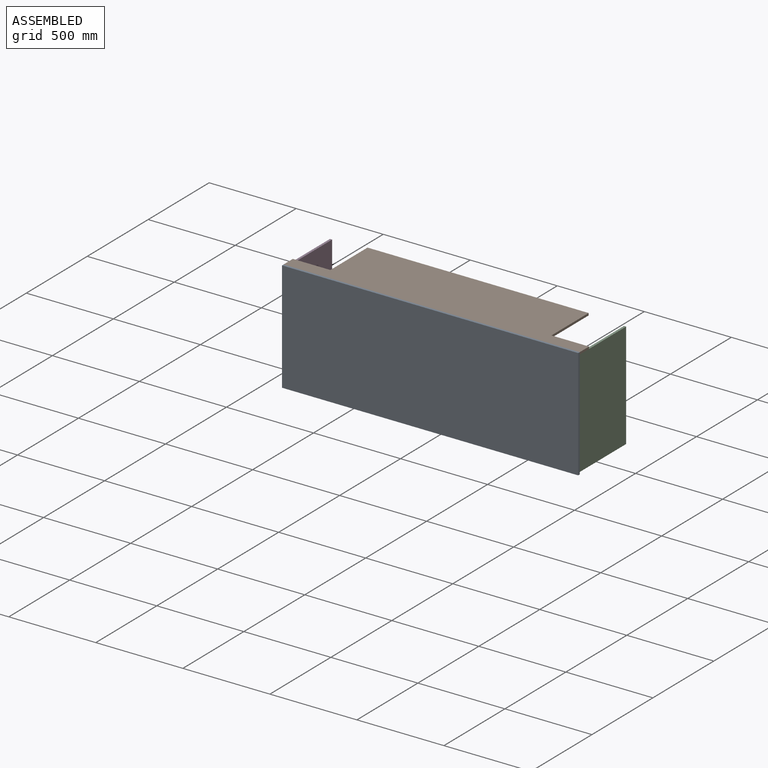
[diagram: assembled view]
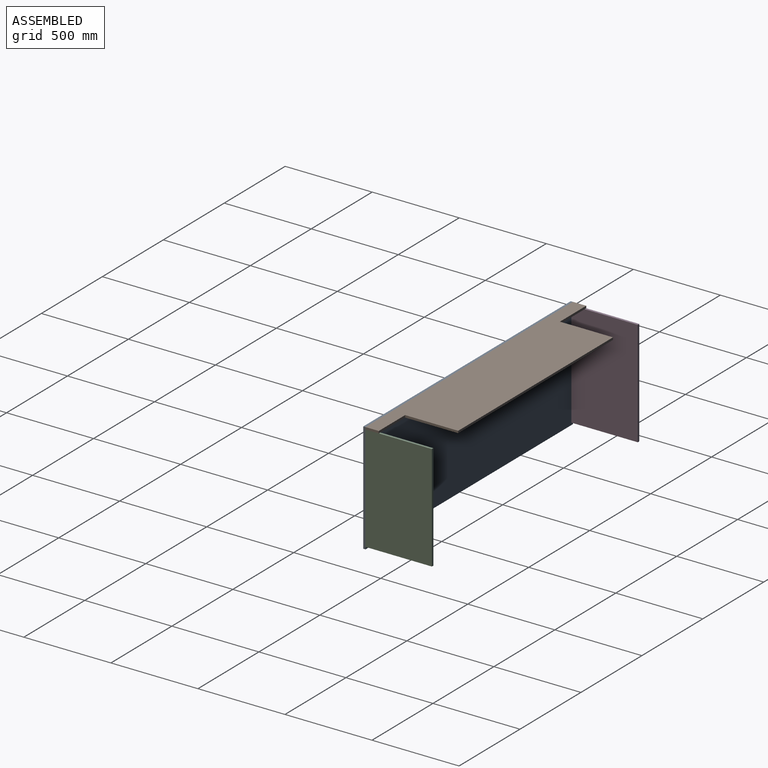
[diagram: assembled view, second angle]
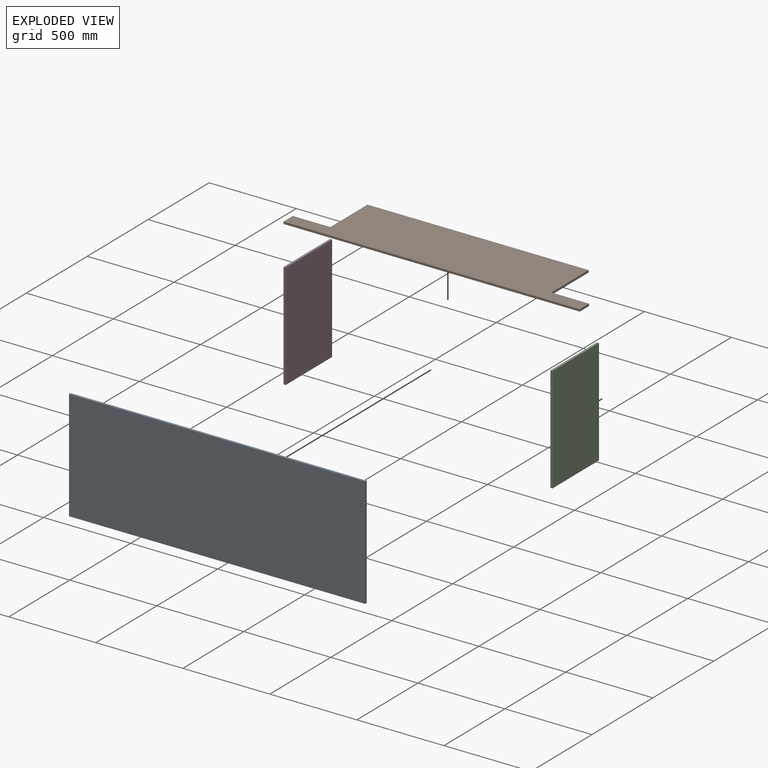
[diagram: exploded view]
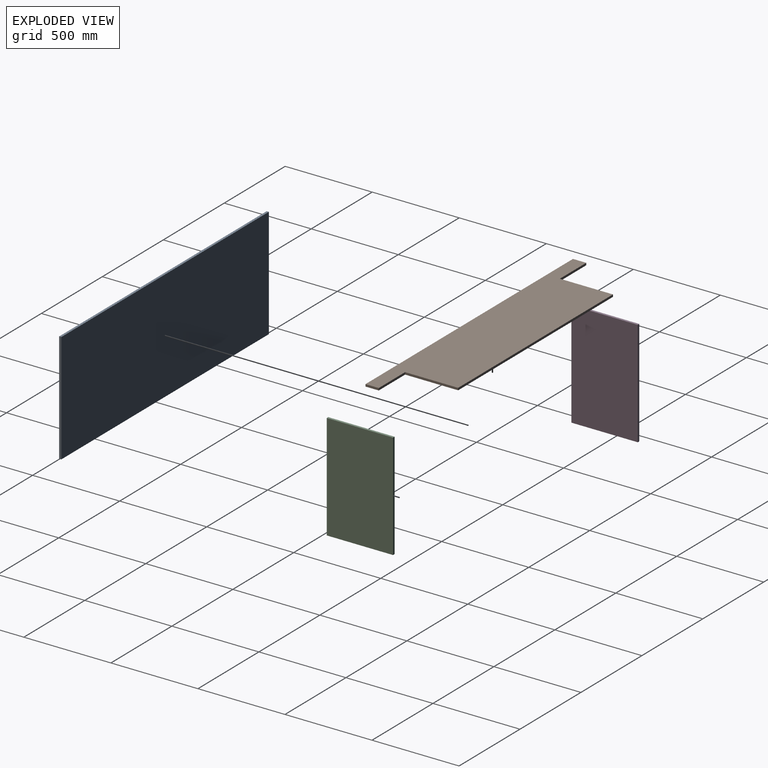
[diagram: exploded view, second angle]
ASSEMBLY  parts=4 mates=9
PART A: 6 faces, bbox 1701.8x12.7x635 mm
  f0: plane 1701.8x12.7mm, normal (0,0,-1), area 21612.9mm2, adj f1,f3,f4,f5
  f1: plane 635x12.7mm, normal (1,0,0), area 8064.5mm2, adj f0,f2,f4,f5
  f2: plane 1701.8x12.7mm, normal (0,0,1), area 21612.9mm2, adj f1,f3,f4,f5
  f3: plane 635x12.7mm, normal (-1,0,0), area 8064.5mm2, adj f0,f2,f4,f5
  f4: plane 1701.8x635mm, normal (0,-1,0), area 1080643mm2, adj f0,f1,f2,f3
  f5: plane 1701.8x635mm, normal (0,1,0), area 1080643mm2, adj f0,f1,f2,f3
PART B: 10 faces, bbox 1701.8x12.7x381 mm
  f0: plane 1270x12.7mm, normal (0,0,1), area 16129mm2, adj f3,f4,f7,f9
  f1: plane 76.2x12.7mm, normal (-1,0,0), area 967.7mm2, adj f3,f4,f5,f8
  f2: plane 76.2x12.7mm, normal (1,0,0), area 967.7mm2, adj f3,f4,f5,f6
  f3: plane 1701.8x381mm, normal (0,-1,0), area 516773.2mm2, adj f0,f1,f2,f5,f6,f7,f8,f9
  f4: plane 1701.8x381mm, normal (0,1,0), area 516773.2mm2, adj f0,f1,f2,f5,f6,f7,f8,f9
  f5: plane 1701.8x12.7mm, normal (0,0,-1), area 21612.9mm2, adj f1,f2,f3,f4
  f6: plane 215.9x12.7mm, normal (0,0,1), area 2741.9mm2, adj f2,f3,f4,f7
  f7: plane 304.8x12.7mm, normal (1,0,0), area 3871mm2, adj f0,f3,f4,f6
  f8: plane 215.9x12.7mm, normal (0,0,1), area 2741.9mm2, adj f1,f3,f4,f9
  f9: plane 304.8x12.7mm, normal (-1,0,0), area 3871mm2, adj f0,f3,f4,f8
PART C: 6 faces, bbox 609.6x12.7x381 mm
  f0: plane 609.6x12.7mm, normal (0,0,1), area 7741.9mm2, adj f1,f3,f4,f5
  f1: plane 381x12.7mm, normal (-1,0,0), area 4838.7mm2, adj f0,f2,f4,f5
  f2: plane 609.6x12.7mm, normal (0,0,-1), area 7741.9mm2, adj f1,f3,f4,f5
  f3: plane 381x12.7mm, normal (1,0,0), area 4838.7mm2, adj f0,f2,f4,f5
  f4: plane 609.6x381mm, normal (0,-1,0), area 232257.6mm2, adj f0,f1,f2,f3
  f5: plane 609.6x381mm, normal (0,1,0), area 232257.6mm2, adj f0,f1,f2,f3
PART D: same geometry as C
PLACE A t=(-1502.68,-209.22,1014.26)mm
PLACE B rot(axis=(-1,0,0),90deg) t=(-673.97,79.44,1001.56)mm
PLACE C rot(axis=(-0.58,-0.58,-0.58),120deg) t=(-673.97,-187.04,423.19)mm
PLACE D rot(axis=(0.58,-0.58,0.58),120deg) t=(-2375.77,149.59,423.19)mm
MATE planar C.f5 <-> B.f2  axis (1,0,0) through (-673.97,-18.72,696.76)mm
MATE planar C.f2 <-> B.f5  axis (0,-1,0) through (-680.32,-209.22,696.76)mm
MATE planar D.f0 <-> B.f5  axis (0,-1,0) through (-2369.42,-209.22,696.76)mm
MATE planar D.f5 <-> B.f1  axis (-1,0,0) through (-2375.77,-18.72,696.76)mm
MATE planar A.f5 <-> B.f5  axis (0,1,0) through (-1524.87,-209.22,696.76)mm
MATE planar C.f3 <-> B.f4  axis (0,0,1) through (-680.32,-18.72,1001.56)mm
MATE planar A.f1 <-> B.f2  axis (1,0,0) through (-673.97,-215.57,696.76)mm
MATE planar A.f2 <-> B.f3  axis (0,0,1) through (-1524.87,-215.57,1014.26)mm
MATE planar D.f3 <-> B.f4  axis (0,0,1) through (-2369.42,-18.72,1001.56)mm
